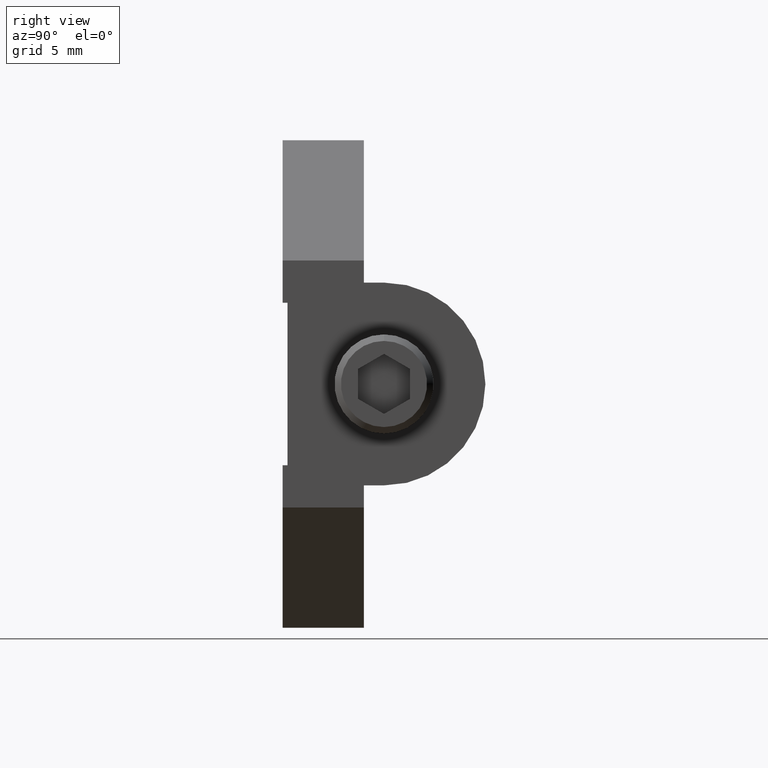
[diagram: clean part render]
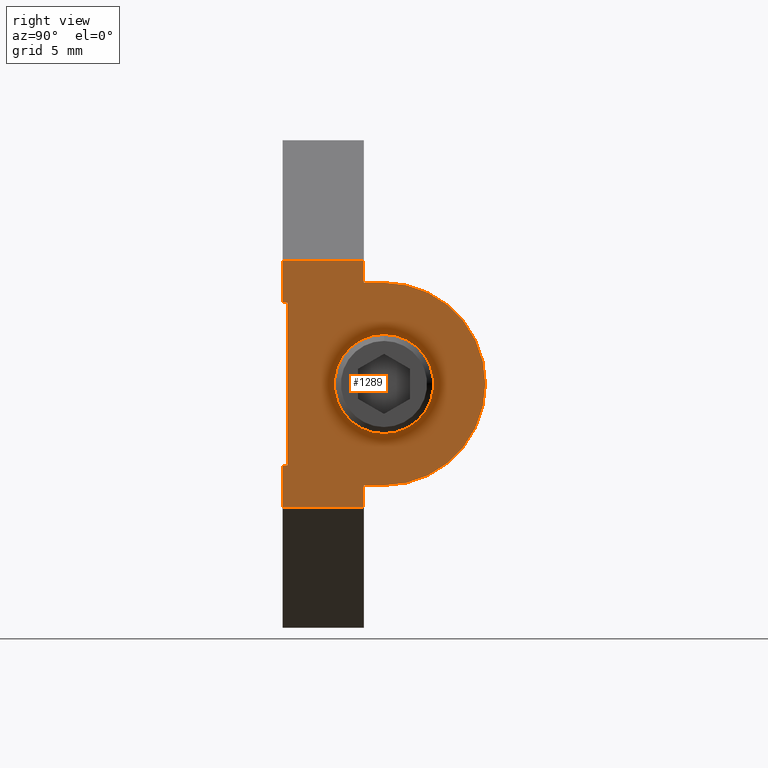
[diagram: same view with one face highlighted and labeled with its STEP entity id]
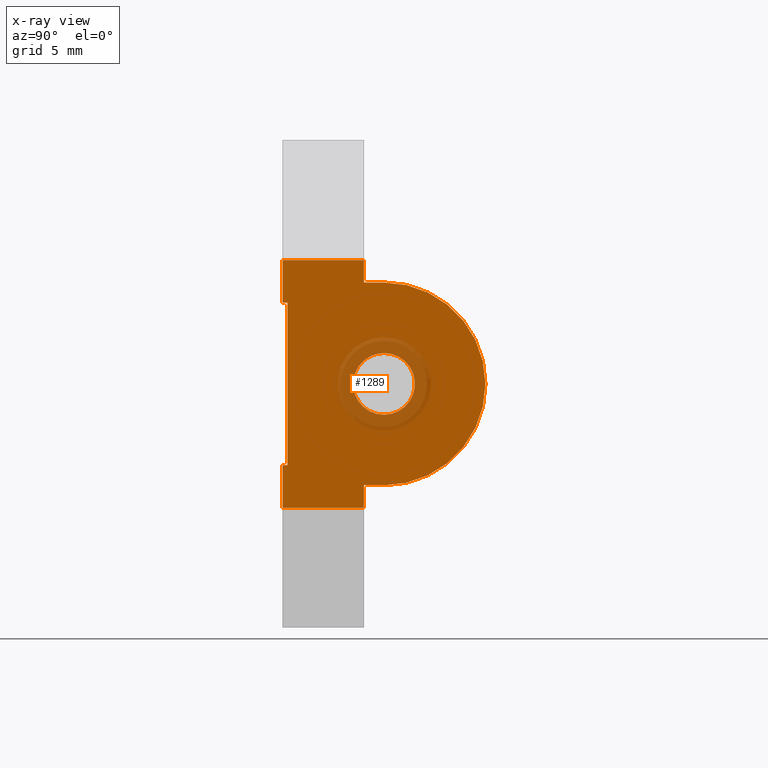
[diagram: x-ray of the same camera — body ghosted, the highlighted face saturated]
A machine part, right view. The second image highlights one B-rep face of the part: STEP entity #1289.
The next image is the same camera in x-ray: the body ghosted, the highlighted face saturated — about 11% of this face is hidden behind the body in this view.
In plain terms, the highlighted planar face has unit normal (1, 0, 0).
Its self-contained STEP definition (entity closure, byte-faithful):
#339=CARTESIAN_POINT('',(5.E-1,3.12E-1,0.E0));
#340=DIRECTION('',(1.E0,0.E0,0.E0));
#341=DIRECTION('',(0.E0,0.E0,-1.E0));
#342=AXIS2_PLACEMENT_3D('',#339,#340,#341);
#347=CARTESIAN_POINT('',(5.E-1,3.12E-1,0.E0));
#348=DIRECTION('',(1.E0,0.E0,0.E0));
#349=DIRECTION('',(0.E0,0.E0,1.E0));
#350=AXIS2_PLACEMENT_3D('',#347,#348,#349);
#355=DIRECTION('',(0.E0,0.E0,1.E0));
#356=VECTOR('',#355,5.E-1);
#357=CARTESIAN_POINT('',(5.E-1,1.5E-2,-2.5E-1));
#358=LINE('',#357,#356);
#362=DIRECTION('',(0.E0,1.E0,0.E0));
#363=VECTOR('',#362,1.5E-2);
#364=CARTESIAN_POINT('',(5.E-1,0.E0,2.5E-1));
#365=LINE('',#364,#363);
#369=DIRECTION('',(0.E0,1.E0,0.E0));
#370=VECTOR('',#369,6.2E-2);
#371=CARTESIAN_POINT('',(5.E-1,2.5E-1,3.12E-1));
#372=LINE('',#371,#370);
#376=CARTESIAN_POINT('',(5.E-1,3.12E-1,0.E0));
#377=DIRECTION('',(-1.E0,0.E0,0.E0));
#378=DIRECTION('',(0.E0,0.E0,1.E0));
#379=AXIS2_PLACEMENT_3D('',#376,#377,#378);
#384=DIRECTION('',(0.E0,-1.E0,0.E0));
#385=VECTOR('',#384,6.2E-2);
#386=CARTESIAN_POINT('',(5.E-1,3.12E-1,-3.12E-1));
#387=LINE('',#386,#385);
#391=DIRECTION('',(0.E0,1.E0,0.E0));
#392=VECTOR('',#391,1.5E-2);
#393=CARTESIAN_POINT('',(5.E-1,0.E0,-2.5E-1));
#394=LINE('',#393,#392);
#577=DIRECTION('',(0.E0,0.E0,-1.E0));
#578=VECTOR('',#577,1.3E-1);
#579=CARTESIAN_POINT('',(5.E-1,0.E0,-2.5E-1));
#580=LINE('',#579,#578);
#619=DIRECTION('',(0.E0,0.E0,-1.E0));
#620=VECTOR('',#619,1.3E-1);
#621=CARTESIAN_POINT('',(5.E-1,0.E0,3.8E-1));
#622=LINE('',#621,#620);
#672=DIRECTION('',(0.E0,1.E0,0.E0));
#673=VECTOR('',#672,2.5E-1);
#674=CARTESIAN_POINT('',(5.E-1,0.E0,-3.8E-1));
#675=LINE('',#674,#673);
#707=DIRECTION('',(0.E0,0.E0,-1.E0));
#708=VECTOR('',#707,6.8E-2);
#709=CARTESIAN_POINT('',(5.E-1,2.5E-1,-3.12E-1));
#710=LINE('',#709,#708);
#721=DIRECTION('',(0.E0,0.E0,-1.E0));
#722=VECTOR('',#721,6.8E-2);
#723=CARTESIAN_POINT('',(5.E-1,2.5E-1,3.8E-1));
#724=LINE('',#723,#722);
#816=DIRECTION('',(0.E0,1.E0,0.E0));
#817=VECTOR('',#816,2.5E-1);
#818=CARTESIAN_POINT('',(5.E-1,0.E0,3.8E-1));
#819=LINE('',#818,#817);
#900=CARTESIAN_POINT('',(5.E-1,3.12E-1,3.12E-1));
#901=CARTESIAN_POINT('',(5.E-1,3.12E-1,-3.12E-1));
#902=VERTEX_POINT('',#900);
#903=VERTEX_POINT('',#901);
#909=CARTESIAN_POINT('',(5.E-1,2.5E-1,-3.12E-1));
#911=VERTEX_POINT('',#909);
#913=CARTESIAN_POINT('',(5.E-1,2.5E-1,3.12E-1));
#915=VERTEX_POINT('',#913);
#949=CARTESIAN_POINT('',(5.E-1,0.E0,-2.5E-1));
#951=VERTEX_POINT('',#949);
#953=CARTESIAN_POINT('',(5.E-1,0.E0,2.5E-1));
#955=VERTEX_POINT('',#953);
#960=CARTESIAN_POINT('',(5.E-1,1.5E-2,-2.5E-1));
#961=CARTESIAN_POINT('',(5.E-1,1.5E-2,2.5E-1));
#962=VERTEX_POINT('',#960);
#963=VERTEX_POINT('',#961);
#964=CARTESIAN_POINT('',(5.E-1,0.E0,3.8E-1));
#965=CARTESIAN_POINT('',(5.E-1,2.5E-1,3.8E-1));
#966=VERTEX_POINT('',#964);
#967=VERTEX_POINT('',#965);
#984=CARTESIAN_POINT('',(5.E-1,0.E0,-3.8E-1));
#985=CARTESIAN_POINT('',(5.E-1,2.5E-1,-3.8E-1));
#986=VERTEX_POINT('',#984);
#987=VERTEX_POINT('',#985);
#1034=CARTESIAN_POINT('',(5.E-1,3.12E-1,-9.5E-2));
#1035=CARTESIAN_POINT('',(5.E-1,3.12E-1,9.5E-2));
#1036=VERTEX_POINT('',#1034);
#1037=VERTEX_POINT('',#1035);
#1253=CARTESIAN_POINT('',(5.E-1,0.E0,7.5E-1));
#1254=DIRECTION('',(1.E0,0.E0,0.E0));
#1255=DIRECTION('',(0.E0,0.E0,-1.E0));
#1256=AXIS2_PLACEMENT_3D('',#1253,#1254,#1255);
#1257=PLANE('',#1256);
#1259=ORIENTED_EDGE('',*,*,#1258,.T.);
#1261=ORIENTED_EDGE('',*,*,#1260,.F.);
#1263=ORIENTED_EDGE('',*,*,#1262,.F.);
#1265=ORIENTED_EDGE('',*,*,#1264,.T.);
#1267=ORIENTED_EDGE('',*,*,#1266,.T.);
#1269=ORIENTED_EDGE('',*,*,#1268,.T.);
#1271=ORIENTED_EDGE('',*,*,#1270,.T.);
#1273=ORIENTED_EDGE('',*,*,#1272,.T.);
#1275=ORIENTED_EDGE('',*,*,#1274,.T.);
#1277=ORIENTED_EDGE('',*,*,#1276,.F.);
#1279=ORIENTED_EDGE('',*,*,#1278,.F.);
#1281=ORIENTED_EDGE('',*,*,#1280,.T.);
#1282=EDGE_LOOP('',(#1259,#1261,#1263,#1265,#1267,#1269,#1271,#1273,#1275,#1277,
#1279,#1281));
#1283=FACE_OUTER_BOUND('',#1282,.F.);
#1284=ORIENTED_EDGE('',*,*,#1243,.T.);
#1286=ORIENTED_EDGE('',*,*,#1285,.T.);
#1287=EDGE_LOOP('',(#1284,#1286));
#1288=FACE_BOUND('',#1287,.F.);
#1289=ADVANCED_FACE('',(#1283,#1288),#1257,.T.);
#343=CIRCLE('',#342,9.5E-2);
#351=CIRCLE('',#350,9.5E-2);
#380=CIRCLE('',#379,3.12E-1);
#1243=EDGE_CURVE('',#1036,#1037,#343,.T.);
#1258=EDGE_CURVE('',#962,#963,#358,.T.);
#1260=EDGE_CURVE('',#955,#963,#365,.T.);
#1262=EDGE_CURVE('',#966,#955,#622,.T.);
#1264=EDGE_CURVE('',#966,#967,#819,.T.);
#1266=EDGE_CURVE('',#967,#915,#724,.T.);
#1268=EDGE_CURVE('',#915,#902,#372,.T.);
#1270=EDGE_CURVE('',#902,#903,#380,.T.);
#1272=EDGE_CURVE('',#903,#911,#387,.T.);
#1274=EDGE_CURVE('',#911,#987,#710,.T.);
#1276=EDGE_CURVE('',#986,#987,#675,.T.);
#1278=EDGE_CURVE('',#951,#986,#580,.T.);
#1280=EDGE_CURVE('',#951,#962,#394,.T.);
#1285=EDGE_CURVE('',#1037,#1036,#351,.T.);